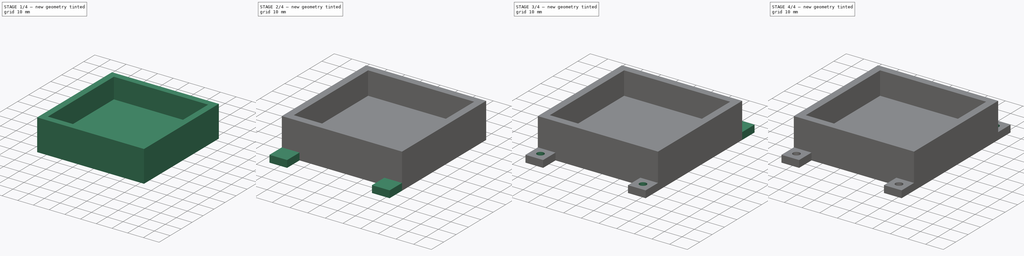
[diagram: build sequence overview — one tinted view per stage of 4, left to right]
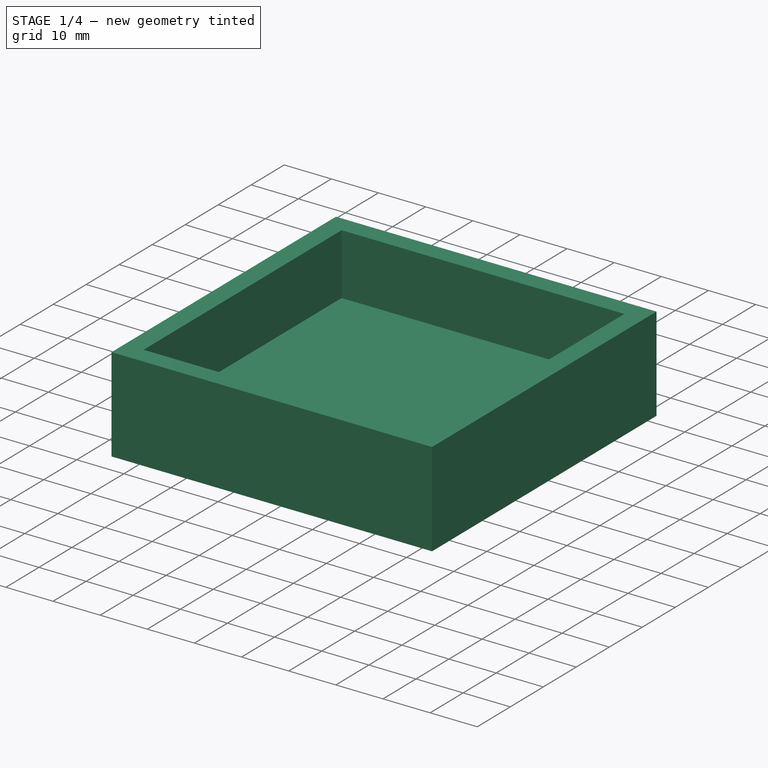
[diagram: stage 1 of 4 — iso view after this stage's code; geometry added in this stage tinted green]
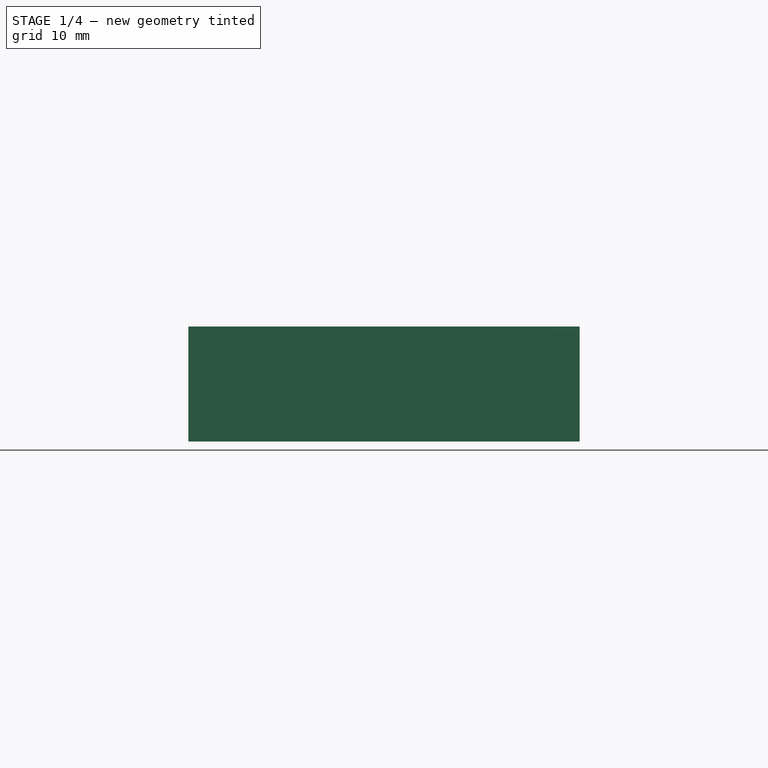
[diagram: stage 1 of 4 — front view after this stage's code; geometry added in this stage tinted green]
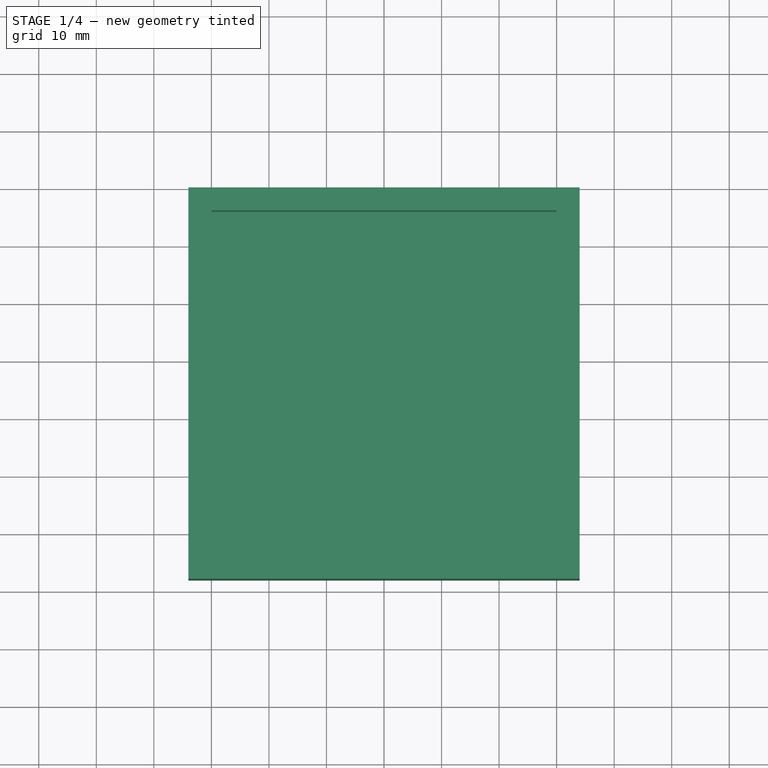
[diagram: stage 1 of 4 — top view after this stage's code; geometry added in this stage tinted green]
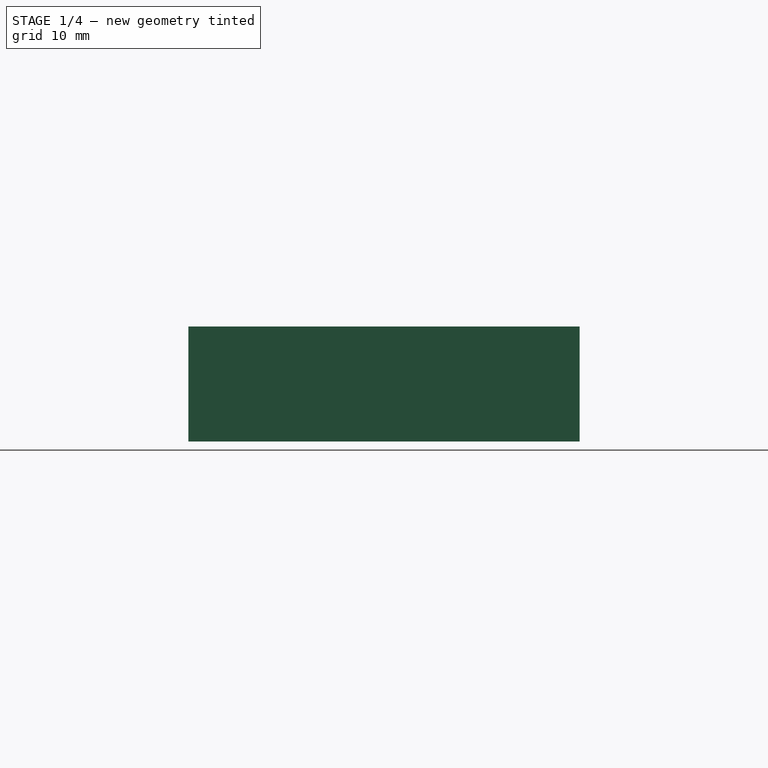
[diagram: stage 1 of 4 — right view after this stage's code; geometry added in this stage tinted green]
FCSTD DOCUMENT  (FreeCAD 0.16R6706 (Git))
Label: Base
License: All rights reserved
LicenseURL: http://en.wikipedia.org/wiki/All_rights_reserved
objects: Sketcher::SketchObject×10, PartDesign::Pocket×6, PartDesign::Pad×4
note: 30 computed .brp shape members not serialized (recipe doc carries the construction recipe); baked Part::Feature solids carry a one-line shape summary decoded from their .brp

FEATURE [Sketcher::SketchObject] Sketch
  Placement = pos=(0,0,0) rot=(1,0,0;1.5708rad)
  sketch-geometry (4):
    g0: LineSegment StartX=-34 StartY=10 StartZ=0 EndX=34 EndY=10 EndZ=0
    g1: LineSegment StartX=34 StartY=10 StartZ=0 EndX=34 EndY=-10 EndZ=0
    g2: LineSegment StartX=34 StartY=-10 StartZ=0 EndX=-34 EndY=-10 EndZ=0
    g3: LineSegment StartX=-34 StartY=-10 StartZ=0 EndX=-34 EndY=10 EndZ=0
  constraints (12):
    c: Coincident(g0,g1)
    c: Coincident(g1,g2)
    c: Coincident(g2,g3)
    c: Coincident(g3,g0)
    c: Horizontal(g0)
    c: Horizontal(g2)
    c: Vertical(g1)
    c: Vertical(g3)
    c: Symmetric(g0,g0,g-2)
    c: Symmetric(g0,g2,g-1)
    c: DistanceX(g2,g2) = 68
    c: DistanceY(g1,g1) = 20
FEATURE [PartDesign::Pad] Pad
  Length = 68
  Length2 = 100
  Placement = pos=(0,0,0) rot=(1,0,0;1.5708rad)
  Sketch = -> Sketch
  Type = 0
FEATURE [Sketcher::SketchObject] Sketch001
  ExternalGeometry = -> [Pad]
  Placement = pos=(0,0,10) rot=(0,0,1;3.14159rad)
  Support = -> Pad [Face1]
  sketch-geometry (4):
    g0: LineSegment StartX=-30 StartY=64 StartZ=0 EndX=30 EndY=64 EndZ=0
    g1: LineSegment StartX=30 StartY=64 StartZ=0 EndX=30 EndY=4 EndZ=0
    g2: LineSegment StartX=30 StartY=4 StartZ=0 EndX=-30 EndY=4 EndZ=0
    g3: LineSegment StartX=-30 StartY=4 StartZ=0 EndX=-30 EndY=64 EndZ=0
  constraints (16):
    c: Coincident(g0,g1)
    c: Coincident(g1,g2)
    c: Coincident(g2,g3)
    c: Coincident(g3,g0)
    c: Horizontal(g0)
    c: Horizontal(g2)
    c: Vertical(g1)
    c: Vertical(g3)
    c: Equal(g0,g3)
    c: Equal(g3,g2)
    c: Equal(g2,g1)
    c: Symmetric(g0,g0,g-2)
    c: DistanceY(g0,g-6) = 4
    c: DistanceY(g-6,g1) = 4
    c: DistanceX(g-5,g2) = 4
    c: DistanceX(g-5,g0) = 4
FEATURE [PartDesign::Pocket] Pocket
  Length = 13
  Placement = pos=(0,0,0) rot=(1,0,0;1.5708rad)
  Sketch = -> Sketch001
  Type = 0
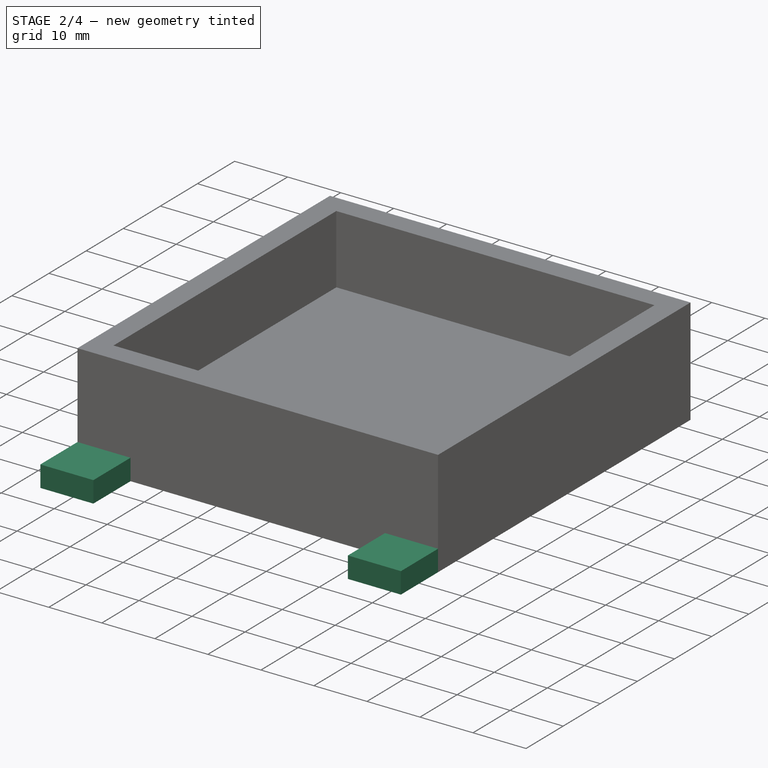
[diagram: stage 2 of 4 — iso view after this stage's code; geometry added in this stage tinted green]
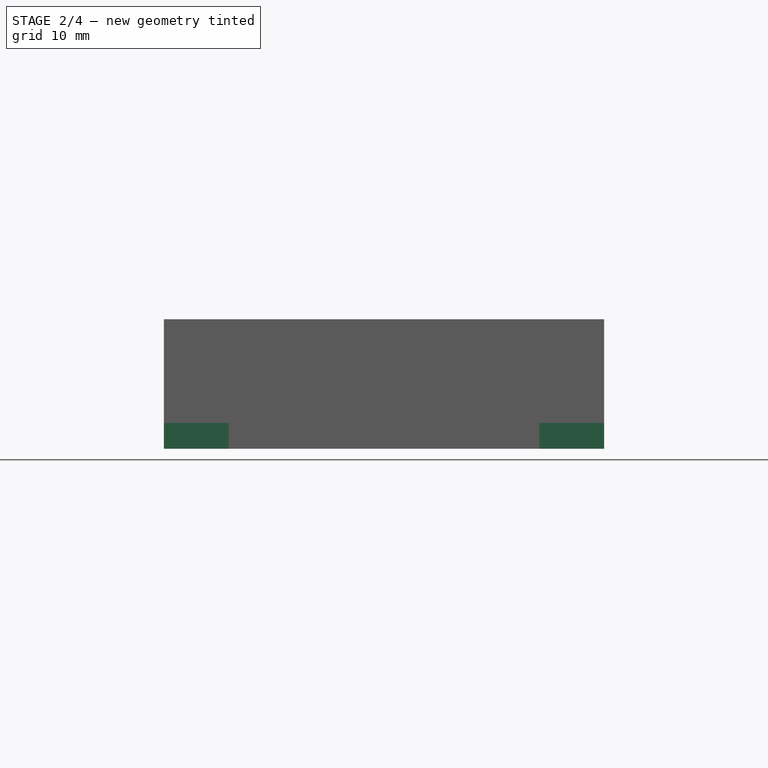
[diagram: stage 2 of 4 — front view after this stage's code; geometry added in this stage tinted green]
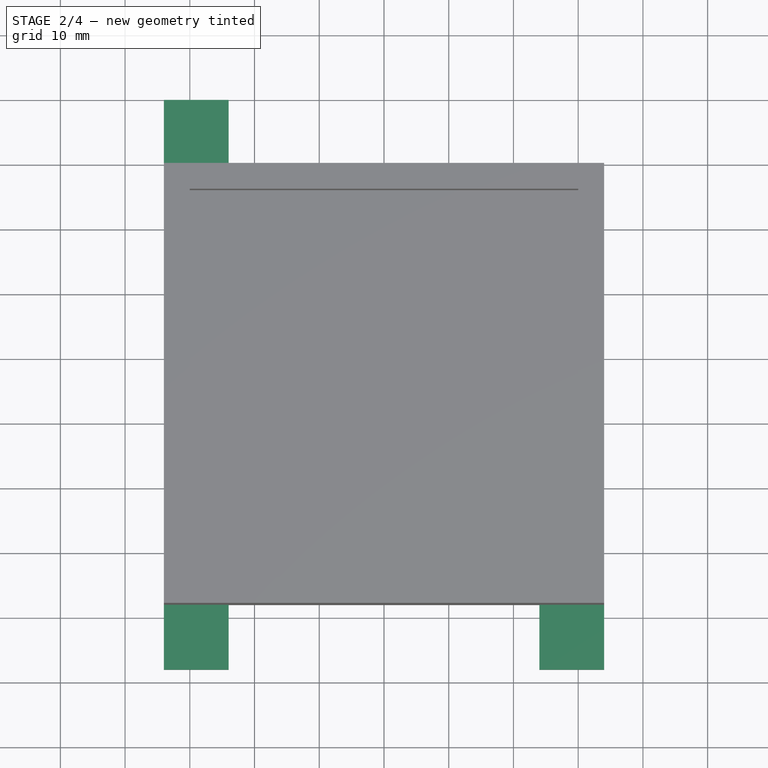
[diagram: stage 2 of 4 — top view after this stage's code; geometry added in this stage tinted green]
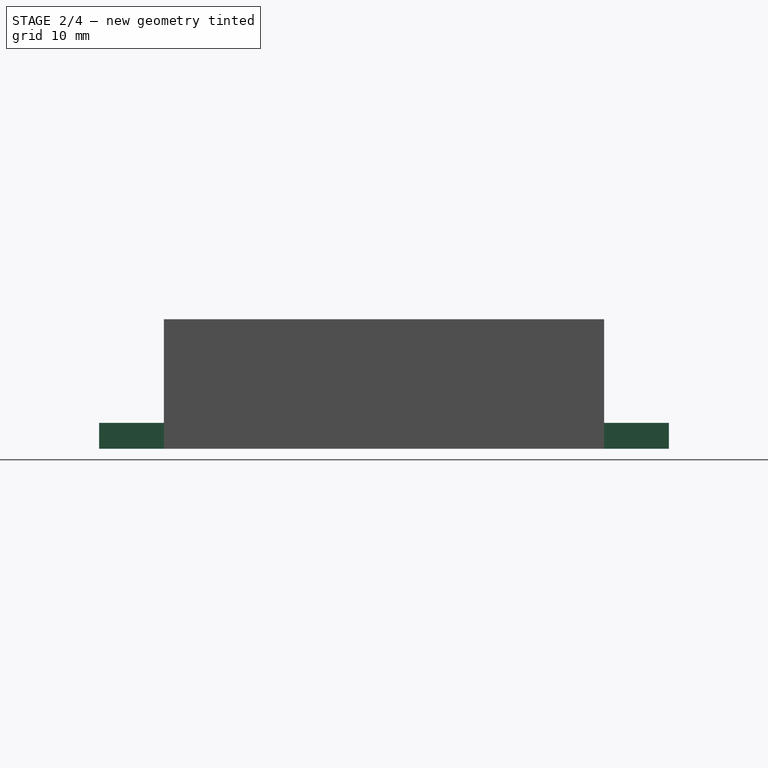
[diagram: stage 2 of 4 — right view after this stage's code; geometry added in this stage tinted green]
FEATURE [Sketcher::SketchObject] Sketch002
  ExternalGeometry = -> [Pocket]
  Placement = pos=(0,-68,0) rot=(1,0,0;1.5708rad)
  Support = -> Pocket [Face4]
  sketch-geometry (8):
    g0: LineSegment StartX=-34 StartY=-6 StartZ=0 EndX=-24 EndY=-6 EndZ=0
    g1: LineSegment StartX=-24 StartY=-6 StartZ=0 EndX=-24 EndY=-10 EndZ=0
    g2: LineSegment StartX=-24 StartY=-10 StartZ=0 EndX=-34 EndY=-10 EndZ=0
    g3: LineSegment StartX=-34 StartY=-10 StartZ=0 EndX=-34 EndY=-6 EndZ=0
    g4: LineSegment StartX=24 StartY=-6 StartZ=0 EndX=34 EndY=-6 EndZ=0
    g5: LineSegment StartX=34 StartY=-6 StartZ=0 EndX=34 EndY=-10 EndZ=0
    g6: LineSegment StartX=34 StartY=-10 StartZ=0 EndX=24 EndY=-10 EndZ=0
    g7: LineSegment StartX=24 StartY=-10 StartZ=0 EndX=24 EndY=-6 EndZ=0
  constraints (24):
    c: Coincident(g0,g1)
    c: Coincident(g1,g2)
    c: Coincident(g2,g3)
    c: Coincident(g3,g0)
    c: Horizontal(g0)
    c: Horizontal(g2)
    c: Vertical(g1)
    c: Vertical(g3)
    c: PointOnObject(g0,g-4)
    c: PointOnObject(g1,g-3)
    c: DistanceX(g0,g0) = 10
    c: DistanceY(g1,g1) = 4
    c: Coincident(g4,g5)
    c: Coincident(g5,g6)
    c: Coincident(g6,g7)
    c: Coincident(g7,g4)
    c: Horizontal(g4)
    c: Horizontal(g6)
    c: Vertical(g5)
    c: Vertical(g7)
    c: PointOnObject(g4,g-5)
    c: PointOnObject(g6,g-3)
    c: DistanceY(g7,g7) = 4
    c: DistanceX(g4,g4) = 10
FEATURE [PartDesign::Pad] Pad001
  Length = 10
  Length2 = 100
  Placement = pos=(0,0,0) rot=(1,0,0;1.5708rad)
  Sketch = -> Sketch002
  Type = 0
FEATURE [Sketcher::SketchObject] Sketch003
  ExternalGeometry = -> [Pad001]
  Placement = pos=(0,0,0) rot=(-1,0,0;1.5708rad)
  Support = -> Pad001 [Face3]
  sketch-geometry (8):
    g0: LineSegment StartX=-34 StartY=10 StartZ=0 EndX=-24 EndY=10 EndZ=0
    g1: LineSegment StartX=-24 StartY=10 StartZ=0 EndX=-24 EndY=6 EndZ=0
    g2: LineSegment StartX=-24 StartY=6 StartZ=0 EndX=-34 EndY=6 EndZ=0
    g3: LineSegment StartX=-34 StartY=6 StartZ=0 EndX=-34 EndY=10 EndZ=0
    g4: LineSegment StartX=24 StartY=10 StartZ=0 EndX=34 EndY=10 EndZ=0
    g5: LineSegment StartX=34 StartY=10 StartZ=0 EndX=34 EndY=6 EndZ=0
    g6: LineSegment StartX=34 StartY=6 StartZ=0 EndX=24 EndY=6 EndZ=0
    g7: LineSegment StartX=24 StartY=6 StartZ=0 EndX=24 EndY=10 EndZ=0
  constraints (26):
    c: Coincident(g0,g1)
    c: Coincident(g1,g2)
    c: Coincident(g2,g3)
    c: Coincident(g3,g0)
    c: Horizontal(g0)
    c: Horizontal(g2)
    c: Vertical(g1)
    c: Vertical(g3)
    c: Coincident(g0,g-4)
    c: DistanceY(g1,g1) = 4
    c: DistanceX(g2,g2) = 10
    c: PointOnObject(g2,g-3)
    c: PointOnObject(g0,g-4)
    c: Coincident(g4,g5)
    c: Coincident(g5,g6)
    c: Coincident(g6,g7)
    c: Coincident(g7,g4)
    c: Horizontal(g4)
    c: Horizontal(g6)
    c: Vertical(g5)
    c: Vertical(g7)
    c: Equal(g1,g5) = 4
    c: Equal(g2,g6) = 10
    c: Coincident(g4,g-5)
    c: PointOnObject(g4,g-4)
    c: PointOnObject(g5,g-5)
FEATURE [PartDesign::Pad] Pad002
  Length = 10
  Length2 = 100
  Placement = pos=(0,0,0) rot=(1,0,0;1.5708rad)
  Sketch = -> Sketch003
  Type = 0
FEATURE [Sketcher::SketchObject] Sketch010  label="servo"
  Placement = pos=(0,0,-10) rot=(1,0,0;3.14159rad)
  Support = -> Pocket [Face10]
  sketch-geometry (13):
    g0: LineSegment StartX=-1.5 StartY=37.5937 StartZ=0 EndX=-1.5 EndY=40.8856 EndZ=0
    g1: LineSegment StartX=1.5 StartY=40.8856 StartZ=0 EndX=1.5 EndY=37.5937 EndZ=0
    g2: LineSegment StartX=1.5 StartY=37.5937 StartZ=0 EndX=17.2101 EndY=35.3708 EndZ=0
    g3: LineSegment StartX=17.2101 StartY=32.4004 StartZ=0 EndX=1.5 EndY=30.1775 EndZ=0
    g4: LineSegment StartX=1.5 StartY=30.1775 StartZ=0 EndX=1.5 EndY=26.8856 EndZ=0
    g5: LineSegment StartX=-1.5 StartY=26.8856 StartZ=0 EndX=-1.5 EndY=30.1775 EndZ=0
    g6: LineSegment StartX=-1.5 StartY=30.1775 StartZ=0 EndX=-15.24 EndY=32.4049 EndZ=0
    g7: LineSegment StartX=-15.24 StartY=35.3662 StartZ=0 EndX=-1.5 EndY=37.5937 EndZ=0
    g8: ArcOfCircle CenterX=0 CenterY=40.8856 CenterZ=0 NormalX=0 NormalY=0 NormalZ=1 Radius=1.5 StartAngle=0 EndAngle=3.14159
    g9: ArcOfCircle CenterX=17 CenterY=33.8856 CenterZ=0 NormalX=0 NormalY=0 NormalZ=1 Radius=1.5 StartAngle=4.85295 EndAngle=7.71342
    g10: ArcOfCircle CenterX=0 CenterY=26.8856 CenterZ=0 NormalX=0 NormalY=0 NormalZ=1 Radius=1.5 StartAngle=3.14159 EndAngle=6.28319
    g11: ArcOfCircle CenterX=-15 CenterY=33.8856 CenterZ=0 NormalX=0 NormalY=0 NormalZ=1 Radius=1.5 StartAngle=1.73151 EndAngle=4.55167
    g12: Circle [constr] CenterX=0 CenterY=33.8856 CenterZ=0 NormalX=0 NormalY=0 NormalZ=1 Radius=4
  constraints (25):
    c: Coincident(g1,g2)
    c: Coincident(g7,g0)
    c: Tangent(g0,g8) = 1.5708
    c: Tangent(g1,g8) = 1.5708
    c: Tangent(g2,g9) = 1.5708
    c: Tangent(g3,g9) = 1.5708
    c: Tangent(g4,g10) = 1.5708
    c: Tangent(g5,g10) = 1.5708
    c: Tangent(g6,g11) = 1.5708
    c: Tangent(g7,g11) = 1.5708
    c: Equal(g11,g8)
    c: Equal(g8,g9)
    c: Equal(g9,g10)
    c: Vertical(g0)
    c: Vertical(g1)
    c: Vertical(g4)
    c: Vertical(g5)
    c: DistanceX(g11,g9) = 32
    c: DistanceY(g8,g10) = -14
    c: Coincident(g3,g4)
    c: Coincident(g6,g5)
    c: PointOnObject(g0,g12)
    c: PointOnObject(g3,g12)
    c: PointOnObject(g5,g12)
    c: PointOnObject(g1,g12)
FEATURE [PartDesign::Pocket] Pocket005
  Length = 3
  Placement = pos=(0,0,0) rot=(1,0,0;1.5708rad)
  Sketch = -> Sketch010
  Type = 0
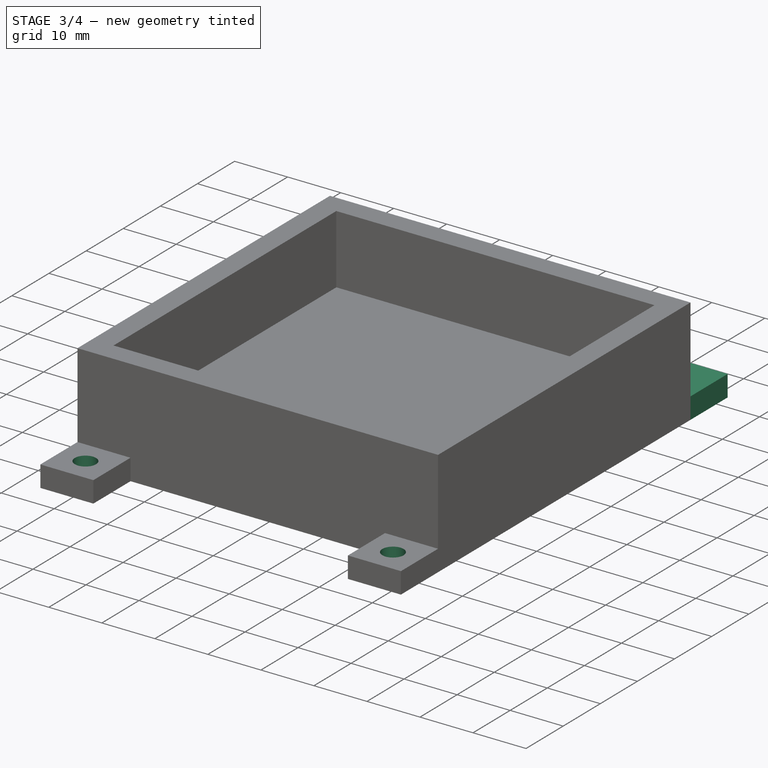
[diagram: stage 3 of 4 — iso view after this stage's code; geometry added in this stage tinted green]
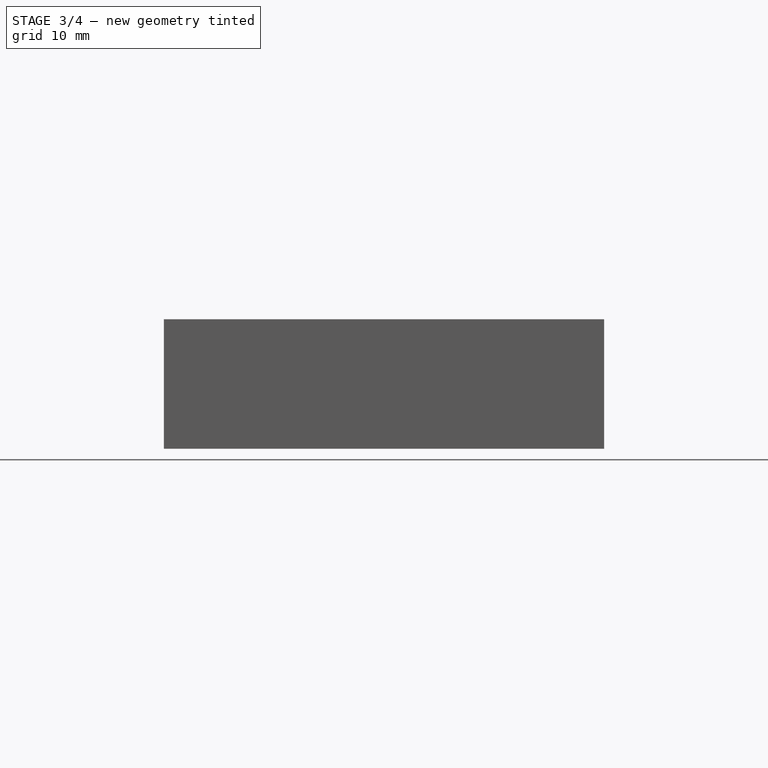
[diagram: stage 3 of 4 — front view after this stage's code; geometry added in this stage tinted green]
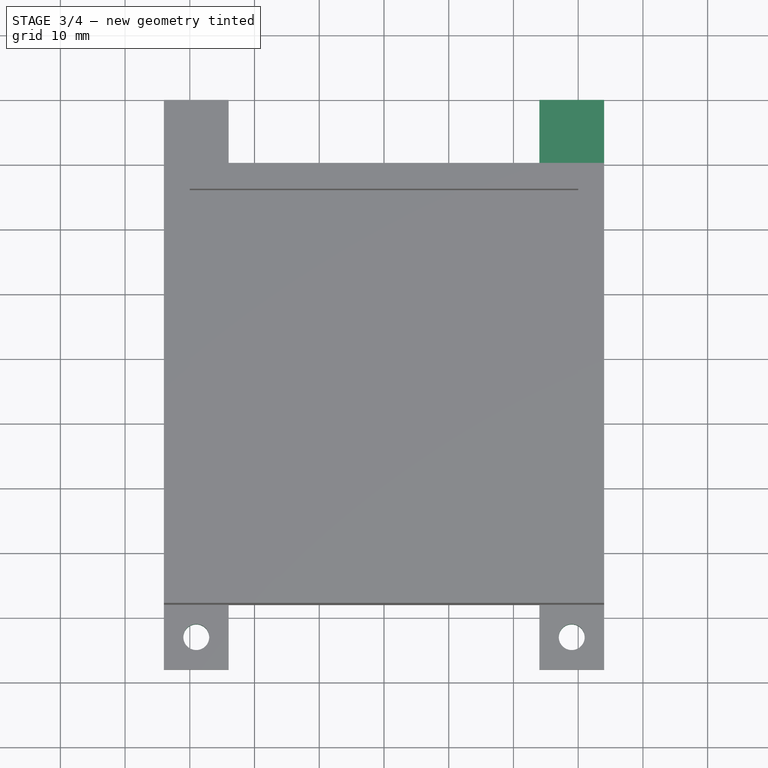
[diagram: stage 3 of 4 — top view after this stage's code; geometry added in this stage tinted green]
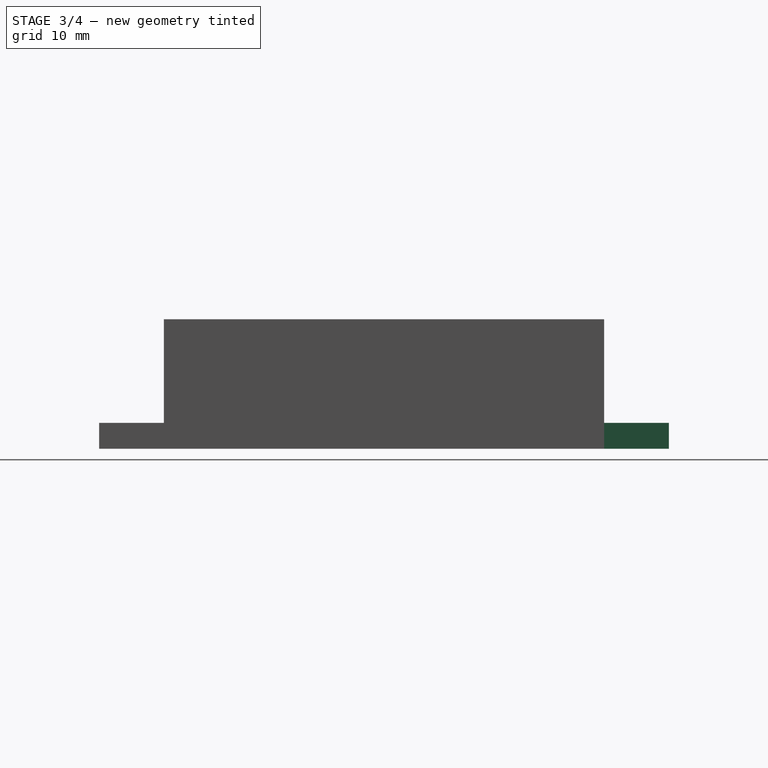
[diagram: stage 3 of 4 — right view after this stage's code; geometry added in this stage tinted green]
FEATURE [Sketcher::SketchObject] Sketch004
  ExternalGeometry = -> [Pad002]
  Placement = pos=(0,0,0) rot=(-1,0,0;1.5708rad)
  Support = -> Pad002 [Face3]
  sketch-geometry (4):
    g0: LineSegment StartX=34 StartY=10 StartZ=0 EndX=24 EndY=10 EndZ=0
    g1: LineSegment StartX=24 StartY=10 StartZ=0 EndX=24 EndY=6 EndZ=0
    g2: LineSegment StartX=24 StartY=6 StartZ=0 EndX=34 EndY=6 EndZ=0
    g3: LineSegment StartX=34 StartY=6 StartZ=0 EndX=34 EndY=10 EndZ=0
  constraints (13):
    c: Coincident(g0,g1)
    c: Coincident(g1,g2)
    c: Coincident(g2,g3)
    c: Coincident(g3,g0)
    c: Horizontal(g0)
    c: Horizontal(g2)
    c: Vertical(g1)
    c: Vertical(g3)
    c: Coincident(g0,g-4)
    c: DistanceY(g1,g1) = 4
    c: DistanceX(g2,g2) = 10
    c: PointOnObject(g2,g-4)
    c: PointOnObject(g0,g-3)
FEATURE [PartDesign::Pad] Pad003
  Length = 10
  Length2 = 100
  Placement = pos=(0,0,0) rot=(1,0,0;1.5708rad)
  Sketch = -> Sketch004
  Type = 0
FEATURE [Sketcher::SketchObject] Sketch005
  ExternalGeometry = -> [Pad003]
  Placement = pos=(0,0,-6) rot=(0,0,1;3.14159rad)
  Support = -> Pad003 [Face20]
  sketch-geometry (1):
    g0: Circle CenterX=-29 CenterY=73 CenterZ=0 NormalX=0 NormalY=0 NormalZ=1 Radius=2
FEATURE [PartDesign::Pocket] Pocket001  label="Forat1"
  Length = 4
  Placement = pos=(0,0,0) rot=(1,0,0;1.5708rad)
  Sketch = -> Sketch005
  Type = 0
FEATURE [Sketcher::SketchObject] Sketch006
  ExternalGeometry = -> [Pocket001]
  Placement = pos=(0,0,-6) rot=(0,0,1;3.14159rad)
  Support = -> Pocket001 [Face20]
  sketch-geometry (1):
    g0: Circle CenterX=29 CenterY=73 CenterZ=0 NormalX=0 NormalY=0 NormalZ=1 Radius=2
FEATURE [PartDesign::Pocket] Pocket002  label="Forat2"
  Length = 4
  Placement = pos=(0,0,0) rot=(1,0,0;1.5708rad)
  Sketch = -> Sketch006
  Type = 0
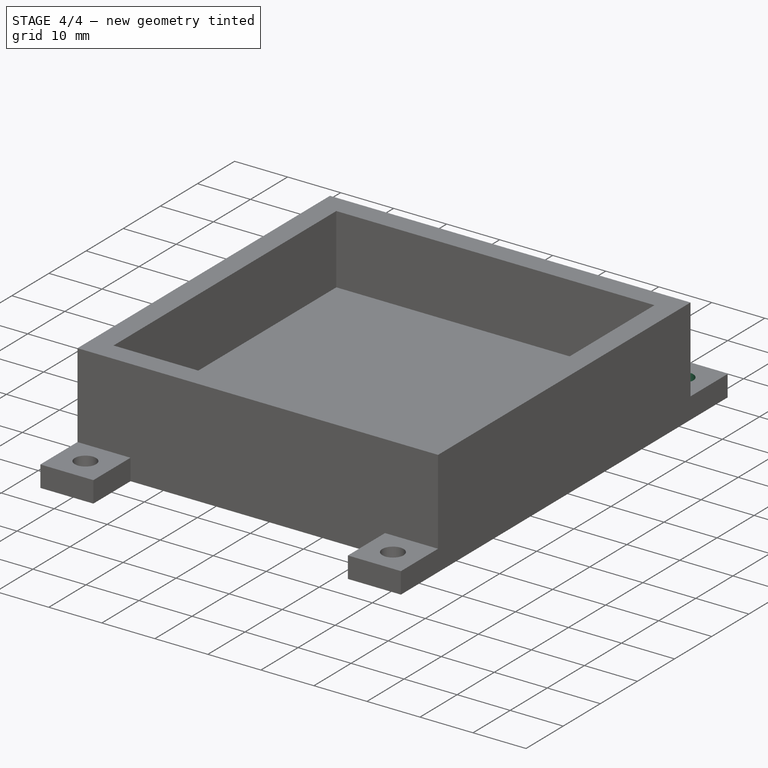
[diagram: stage 4 of 4 — iso view after this stage's code; geometry added in this stage tinted green]
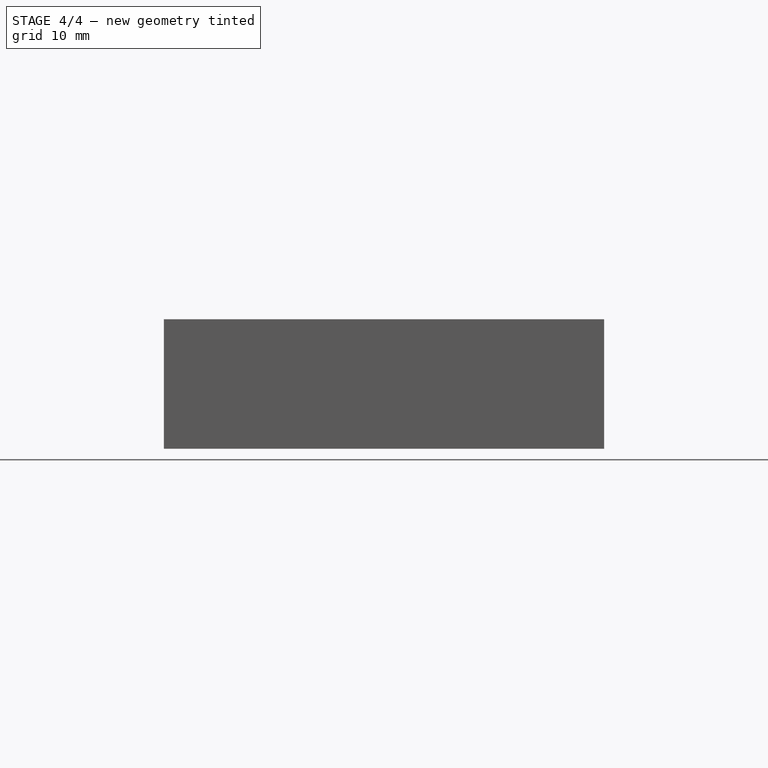
[diagram: stage 4 of 4 — front view after this stage's code; geometry added in this stage tinted green]
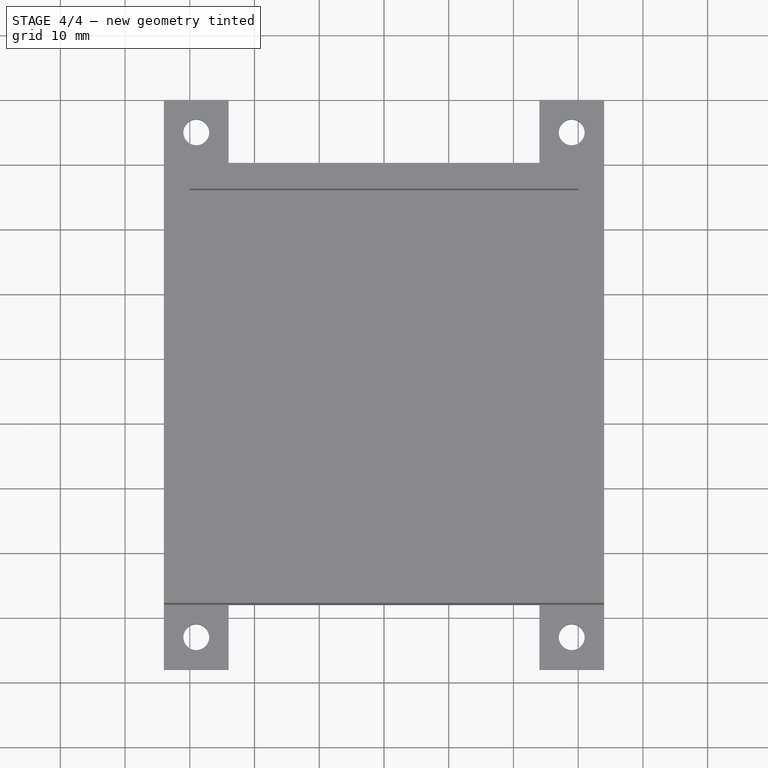
[diagram: stage 4 of 4 — top view after this stage's code; geometry added in this stage tinted green]
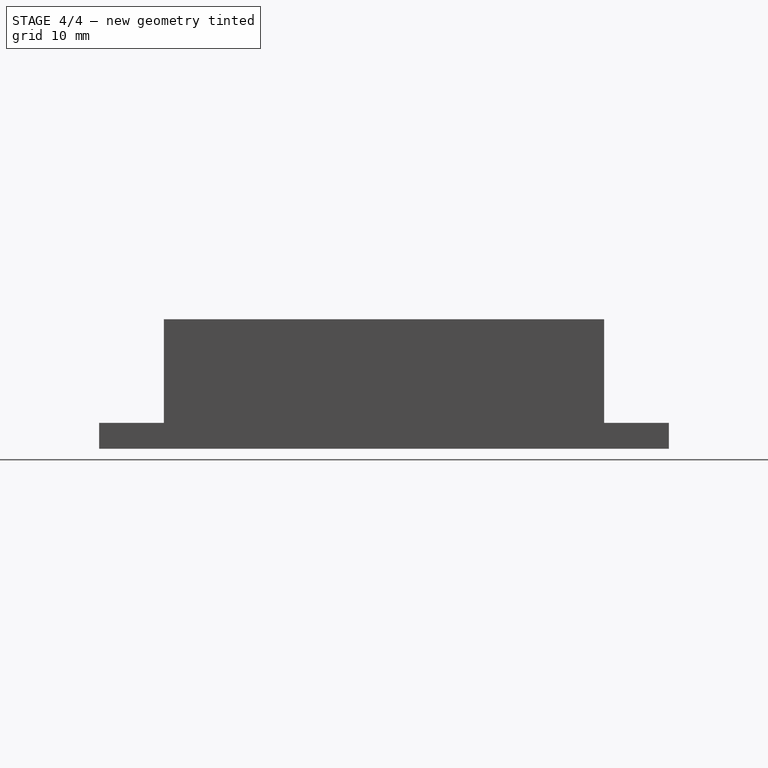
[diagram: stage 4 of 4 — right view after this stage's code; geometry added in this stage tinted green]
FEATURE [Sketcher::SketchObject] Sketch007
  ExternalGeometry = -> [Pocket002]
  Placement = pos=(0,0,-6) rot=(0,0,1;3.14159rad)
  Support = -> Pocket002 [Face13]
  sketch-geometry (1):
    g0: Circle CenterX=-29 CenterY=-5 CenterZ=0 NormalX=0 NormalY=0 NormalZ=1 Radius=2
FEATURE [PartDesign::Pocket] Pocket003  label="Forat3"
  Length = 4
  Placement = pos=(0,0,0) rot=(1,0,0;1.5708rad)
  Sketch = -> Sketch007
  Type = 0
FEATURE [Sketcher::SketchObject] Sketch008
  ExternalGeometry = -> [Pocket003]
  Placement = pos=(0,0,-6) rot=(0,0,1;3.14159rad)
  Support = -> Pocket003 [Face16]
  sketch-geometry (1):
    g0: Circle CenterX=29 CenterY=-5 CenterZ=0 NormalX=0 NormalY=0 NormalZ=1 Radius=2
FEATURE [PartDesign::Pocket] Pocket004  label="Forat4"
  Length = 4
  Placement = pos=(0,0,0) rot=(1,0,0;1.5708rad)
  Sketch = -> Sketch008
  Type = 0
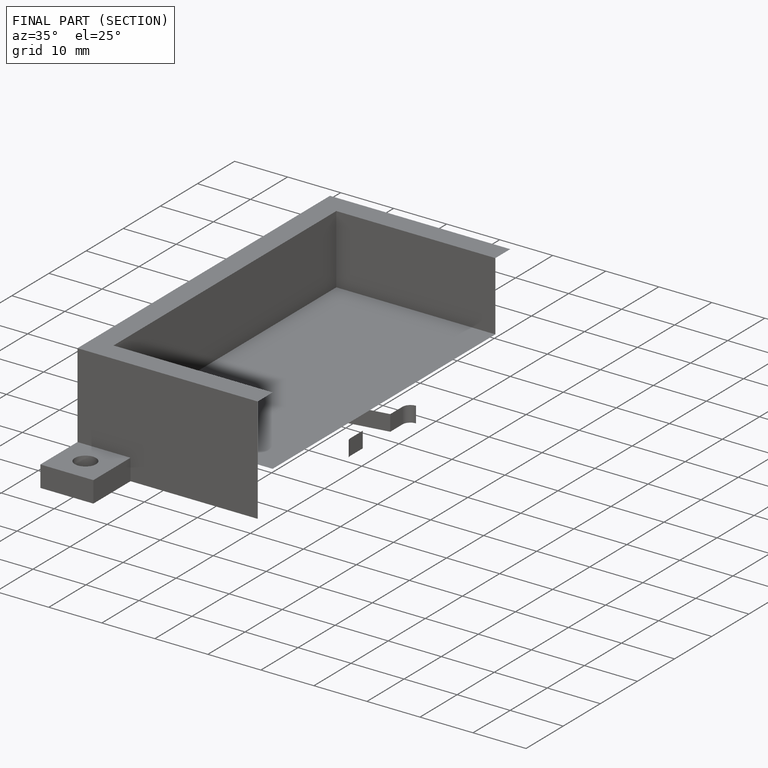
[diagram: finished part — half-section view (interior)]
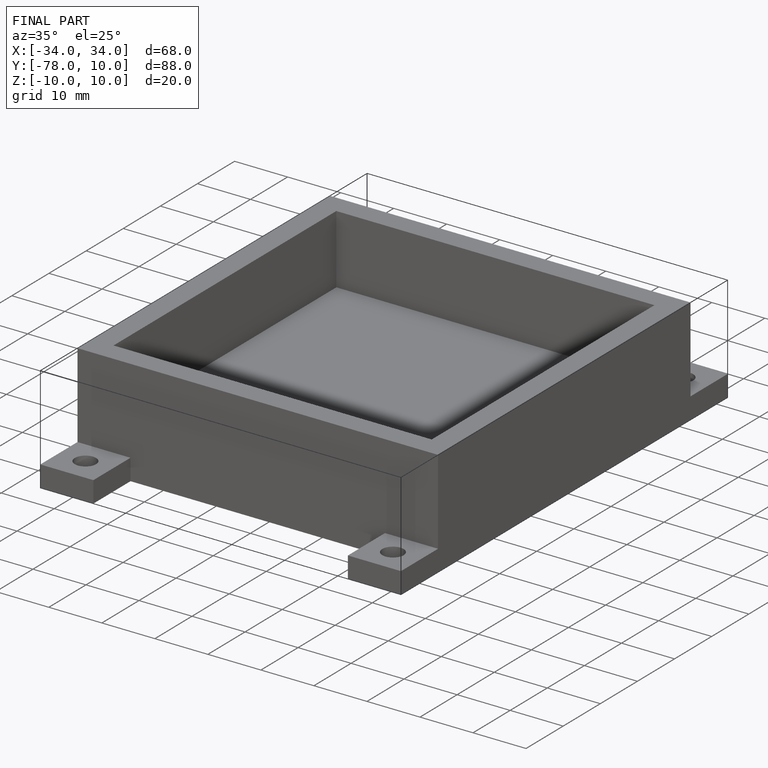
[diagram: finished part — iso view with bounding-box wireframe]
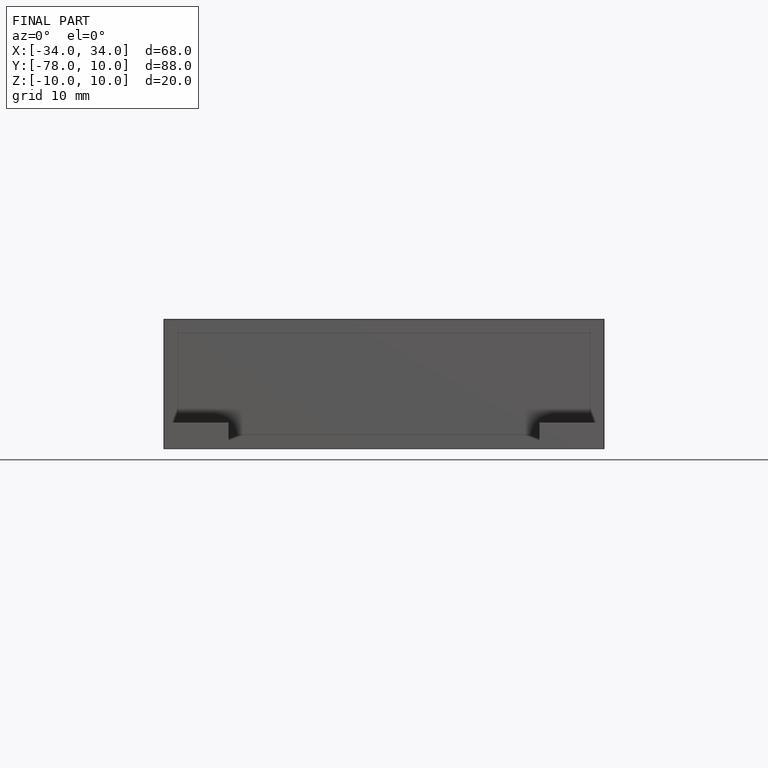
[diagram: finished part — front view with bounding-box wireframe]
